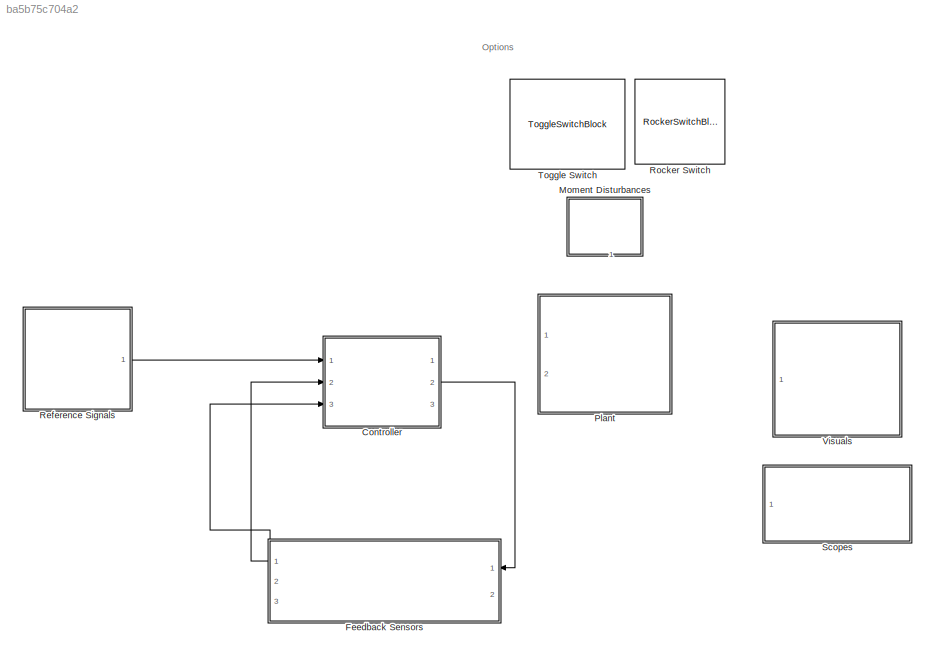
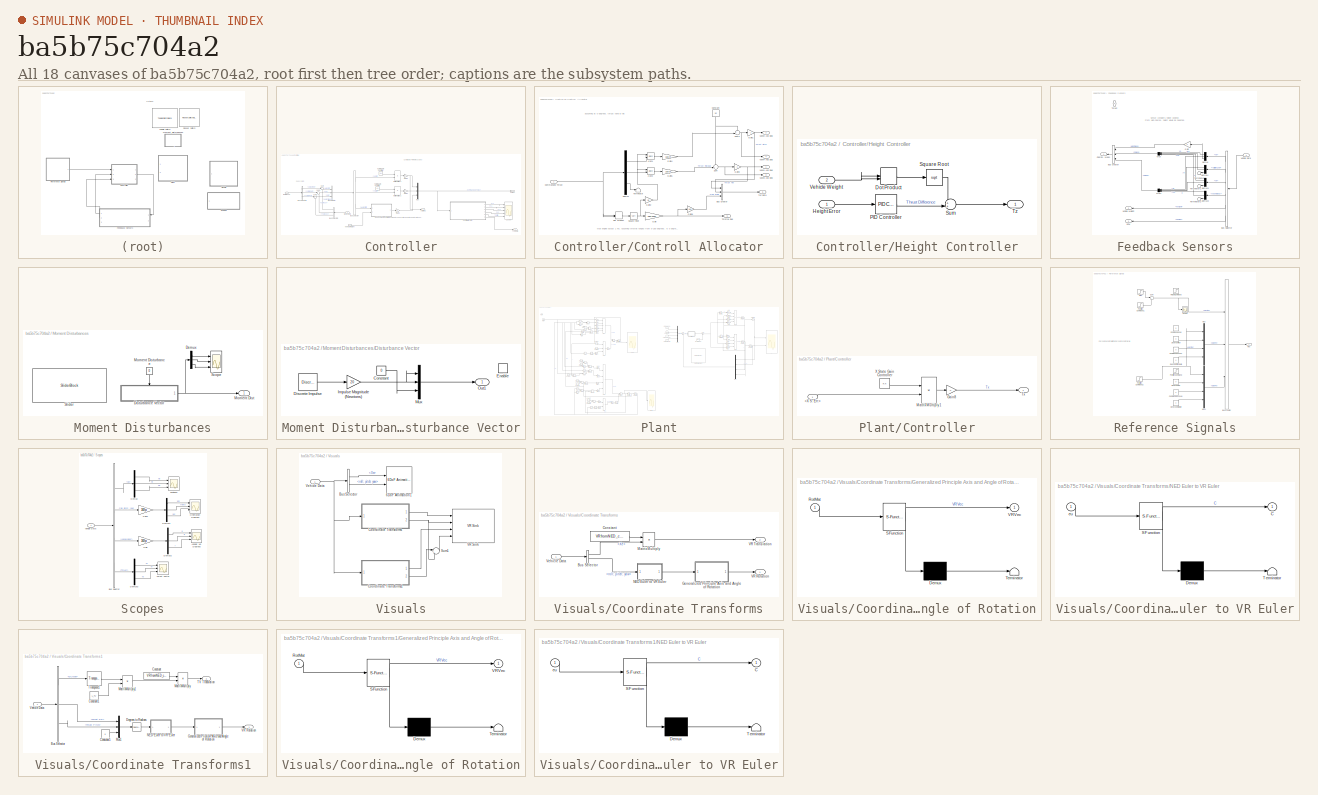
[diagram: thumbnail index - all 18 canvases of the model, root first then tree order]
MODEL slx_ba5b75c704a2
KIND model
CONFIG AbsTol = auto
CONFIG EnableMultiTasking = off
CONFIG FixedStep = auto
CONFIG MaxStep = auto
CONFIG MinStep = auto
CONFIG RelTol = 1e-3
CONFIG SampleTimeConstraint = Unconstrained
CONFIG SolverName = VariableStepAuto
CONFIG StartTime = 0.0
CONFIG StopTime = 2
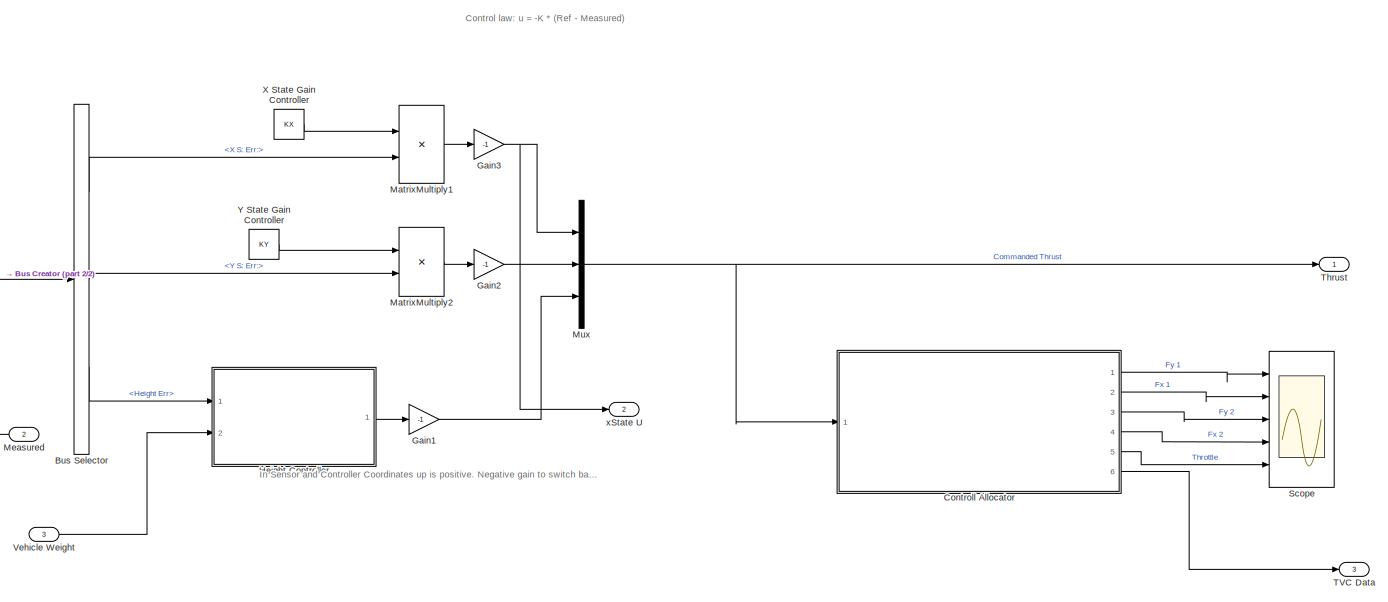
[diagram: Controller - part 1/2, most of the canvas]
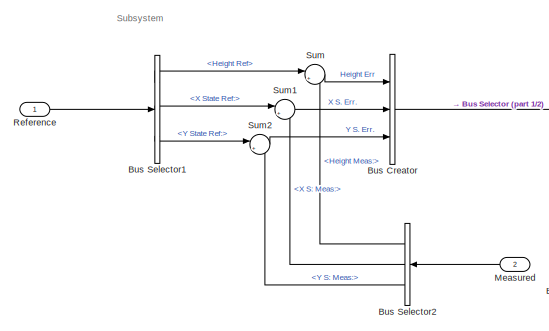
[diagram: Controller - part 2/2, middle left region]
BLOCK [SubSystem] Controller
  Commented = on
  PortSchema = {"entries":[{"content":{"sides":[{"content":{"connectorIds":["In1","In2"]},"type":"ConnectorPlacement.EquallySpacedRectSide","uuid":"a9e81047-82e7-465f-ace1-8f718b90561e"},{"content":{"connectorIds":["Out1","Out2","Out3"],"side":"RIGHT"},"type":"ConnectorPlacement.EquallySpacedRectSide","uuid":"e48627af-c2aa-4531-b804-41f44ff16765"},{"content":{"connectorIds":[],"side":"TOP"},"type":"ConnectorPlac...<+409ch>
  Ports = [3, 3]
  RequestExecContextInheritance = off
  TreatAsAtomicUnit = on
BLOCK [BusCreator] Controller/Bus Creator
  DisplayOption = bar
  InheritFromInputs = on
  Inputs = 3
  Ports = [3, 1]
BLOCK [BusSelector] Controller/Bus Selector
  OutputSignals = X S: Err:,Y S: Err:,Height Err
  Ports = [1, 3]
BLOCK [BusSelector] Controller/Bus Selector1
  OutputSignals = Height Ref,X State Ref:,Y State Ref:
  Ports = [1, 3]
BLOCK [BusSelector] Controller/Bus Selector2
  NameLocation = top
  OutputSignals = Height Meas:,X S: Meas:,Y S: Meas:
  Ports = [1, 3]
BLOCK [SubSystem] Controller/Controll Allocator
  Ports = [1, 6]
  RequestExecContextInheritance = off
BLOCK [Trigonometry] Controller/Controll Allocator/Atan1
  Operator = atan2
  Ports = [2, 1]
BLOCK [Trigonometry] Controller/Controll Allocator/Atan2
  Operator = atan2
  Ports = [2, 1]
BLOCK [BusCreator] Controller/Controll Allocator/Bus Creator
  DisplayOption = bar
  InheritFromInputs = on
  Inputs = 3
  Ports = [3, 1]
BLOCK [Inport] Controller/Controll Allocator/Commanded Thrust
BLOCK [Constant] Controller/Controll Allocator/Constant
  NameLocation = left
  Value = 90
BLOCK [Demux] Controller/Controll Allocator/Demux
  Outputs = 3
  Ports = [1, 3]
BLOCK [DotProduct] Controller/Controll Allocator/Dot Product
  OutDataTypeStr = Inherit: Inherit via internal rule
BLOCK [Gain] Controller/Controll Allocator/Gain
  Gain = 180/1000
BLOCK [Gain] Controller/Controll Allocator/Gain1
  Gain = -1
BLOCK [Gain] Controller/Controll Allocator/Gain2
  Gain = 1/2
BLOCK [Gain] Controller/Controll Allocator/Gain3
  Gain = -1
BLOCK [Gain] Controller/Controll Allocator/Gain4
  Gain = 180/pi
BLOCK [Gain] Controller/Controll Allocator/Gain5
  Gain = 180/pi
BLOCK [Gain] Controller/Controll Allocator/Gain6
  Gain = 1/90
BLOCK [Sqrt] Controller/Controll Allocator/Square Root
BLOCK [Sum] Controller/Controll Allocator/Sum
  Inputs = -+|
  Ports = [2, 1]
BLOCK [Sum] Controller/Controll Allocator/Sum2
  Inputs = +-|
  Ports = [2, 1]
BLOCK [Outport] Controller/Controll Allocator/TVC Data
  Port = 6
BLOCK [Terminator] Controller/Controll Allocator/Terminator
BLOCK [Outport] Controller/Controll Allocator/Throttle Deg
  Port = 5
BLOCK [Outport] Controller/Controll Allocator/Vane1 Ang Deg
BLOCK [Outport] Controller/Controll Allocator/Vane2 Ang Deg
  Port = 2
BLOCK [Outport] Controller/Controll Allocator/Vane3 Ang Deg
  Port = 3
BLOCK [Outport] Controller/Controll Allocator/Vane4 Ang Deg
  Port = 4
BLOCK [Gain] Controller/Gain1
  Gain = -1
BLOCK [Gain] Controller/Gain2
  Gain = -1
BLOCK [Gain] Controller/Gain3
  Gain = -1
BLOCK [SubSystem] Controller/Height Controller
  Ports = [2, 1]
  RequestExecContextInheritance = off
BLOCK [DotProduct] Controller/Height Controller/Dot Product
  OutDataTypeStr = Inherit: Inherit via internal rule
BLOCK [Inport] Controller/Height Controller/Height Error
BLOCK [Reference] Controller/Height Controller/PID Controller  REF=slpidlib/PID Controller
  Ports = [1, 1]
  SourceBlock = slpidlib/PID Controller
  SourceProductBaseCode = SL
  SourceType = PID 1dof
BLOCK [Sqrt] Controller/Height Controller/Square Root
BLOCK [Sum] Controller/Height Controller/Sum
  Inputs = ++|
  Ports = [2, 1]
BLOCK [Outport] Controller/Height Controller/Tz
BLOCK [Inport] Controller/Height Controller/Vehicle Weight
  Port = 2
BLOCK [Product] Controller/MatrixMultiply1
  Multiplication = Matrix(*)
  Ports = [2, 1]
BLOCK [Product] Controller/MatrixMultiply2
  Multiplication = Matrix(*)
  Ports = [2, 1]
BLOCK [Inport] Controller/Measured
  NameLocation = top
  Port = 2
BLOCK [Mux] Controller/Mux
  DisplayOption = bar
  Inputs = 3
  Ports = [3, 1]
BLOCK [Inport] Controller/Reference
BLOCK [Scope] Controller/Scope
  Floating = off
  NumInputPorts = 5
  Ports = [5]
  ScopeSpecificationString = Simulink.scopes.TimeScopeBlockCfg('CurrentConfiguration', extmgr.ConfigurationSet(extmgr.Configuration('Core','General UI',true),extmgr.Configuration('Core','Source UI',true),extmgr.Configuration('Sources','WiredSimulink',true,'DataLoggingVariableName','ScopeData1'),extmgr.Configuration('Visuals','Time Domain',true,'SerializedDisplays',{struct('MinYLimReal','-66.35056','MaxYLimReal','77.40779','YL...<+4821ch>
BLOCK [Sum] Controller/Sum
  Inputs = |+-
  Ports = [2, 1]
BLOCK [Sum] Controller/Sum1
  Inputs = |+-
  Ports = [2, 1]
BLOCK [Sum] Controller/Sum2
  Inputs = |+-
  Ports = [2, 1]
BLOCK [Outport] Controller/TVC Data
  Port = 3
BLOCK [Outport] Controller/Thrust
BLOCK [Inport] Controller/Vehicle Weight
  Port = 3
BLOCK [Constant] Controller/X State Gain Controller
  Value = KX
  VectorParams1D = off
BLOCK [Constant] Controller/Y State Gain Controller
  Value = KY
  VectorParams1D = off
BLOCK [Outport] Controller/xState U
  Port = 2
BLOCK [SubSystem] Feedback Sensors
  Commented = on
  NameLocation = top
  PortSchema = {"entries":[{"content":{"sides":[{"content":{"connectorIds":["In1","In2"]},"type":"ConnectorPlacement.EquallySpacedRectSide","uuid":"d175d4a2-8e54-4a4e-8022-790f4682ab06"},{"content":{"connectorIds":["Out1"],"side":"RIGHT"},"type":"ConnectorPlacement.EquallySpacedRectSide","uuid":"24f1a27c-01cc-42b0-9970-402e35771ac9"},{"content":{"connectorIds":["Out2","Out3"],"side":"TOP"},"type":"ConnectorPlace...<+259ch>
  Ports = [2, 3]
  RequestExecContextInheritance = off
BLOCK [BusCreator] Feedback Sensors/Bus Creator
  DisplayOption = bar
  InheritFromInputs = on
  Inputs = 3
  NameLocation = top
  Ports = [3, 1]
BLOCK [BusSelector] Feedback Sensors/Bus Selector
  NameLocation = top
  OutputSignals = Xe,roll; pitch; yaw,Ve,AngVel Body,Weight,DCMbe
  Ports = [1, 6]
BLOCK [Outport] Feedback Sensors/Coords, Meas.
  NameLocation = top
BLOCK [Outport] Feedback Sensors/DCM
  NameLocation = top
  Port = 3
BLOCK [Demux] Feedback Sensors/Demux
  NameLocation = top
  Outputs = 3
  Ports = [1, 3]
BLOCK [Demux] Feedback Sensors/Demux1
  NameLocation = top
  Outputs = 3
  Ports = [1, 3]
BLOCK [Demux] Feedback Sensors/Demux2
  NameLocation = top
  Outputs = 3
  Ports = [1, 3]
BLOCK [Demux] Feedback Sensors/Demux4
  NameLocation = top
  Outputs = 3
  Ports = [1, 3]
BLOCK [Gain] Feedback Sensors/Gain
  Gain = -1
  NameLocation = top
BLOCK [Mux] Feedback Sensors/Mux
  DisplayOption = bar
  NameLocation = top
  Ports = [4, 1]
BLOCK [Mux] Feedback Sensors/Mux1
  DisplayOption = bar
  NameLocation = top
  Ports = [4, 1]
BLOCK [Terminator] Feedback Sensors/Terminator
  NameLocation = top
BLOCK [Terminator] Feedback Sensors/Terminator1
  NameLocation = top
BLOCK [Terminator] Feedback Sensors/Terminator2
  NameLocation = top
BLOCK [Inport] Feedback Sensors/Thrust
  NameLocation = left
BLOCK [Inport] Feedback Sensors/Vehicle Data
  NameLocation = top
  Port = 2
BLOCK [Outport] Feedback Sensors/Vehicle Weight
  NameLocation = top
  Port = 2
BLOCK [SubSystem] Moment Disturbances
  Commented = on
  NameLocation = top
  Ports = [0, 1]
  RequestExecContextInheritance = off
BLOCK [Demux] Moment Disturbances/Demux
  Outputs = 3
  Ports = [1, 3]
BLOCK [SubSystem] Moment Disturbances/Disturbance Vector
  Ports = [0, 1, 1]
  RequestExecContextInheritance = off
BLOCK [Constant] Moment Disturbances/Disturbance Vector/Constant
  Value = 0
BLOCK [Reference] Moment Disturbances/Disturbance Vector/Discrete Impulse  REF=dspsrcs4/Discrete 
Impulse
  Ports = [0, 1]
  SourceBlock = dspsrcs4/Discrete \nImpulse
  SourceProductBaseCode = DS
  SourceType = Discrete Impulse
BLOCK [EnablePort] Moment Disturbances/Disturbance Vector/Enable
  Ports = []
BLOCK [Gain] Moment Disturbances/Disturbance Vector/Impulse Magnitude (Newtons)
  Gain = 20
BLOCK [Mux] Moment Disturbances/Disturbance Vector/Mux
  DisplayOption = bar
  Inputs = 3
  Ports = [3, 1]
BLOCK [Outport] Moment Disturbances/Disturbance Vector/Out1
BLOCK [Outport] Moment Disturbances/Moment Dist
BLOCK [Constant] Moment Disturbances/Moment Disturbance
  NameLocation = left
  Value = 0
BLOCK [Scope] Moment Disturbances/Scope
  Floating = off
  NumInputPorts = 3
  Ports = [3]
  ScopeSpecificationString = Simulink.scopes.TimeScopeBlockCfg('CurrentConfiguration', extmgr.ConfigurationSet(extmgr.Configuration('Core','General UI',true),extmgr.Configuration('Core','Source UI',true),extmgr.Configuration('Sources','WiredSimulink',true,'DataLoggingVariableName','ScopeData1'),extmgr.Configuration('Visuals','Time Domain',true,'SerializedDisplays',{struct('MinYLimReal','-1.00000','MaxYLimReal','1.00000','YLab...<+2762ch>
BLOCK [SliderBlock] Moment Disturbances/Slider
  ScaleMax = 20
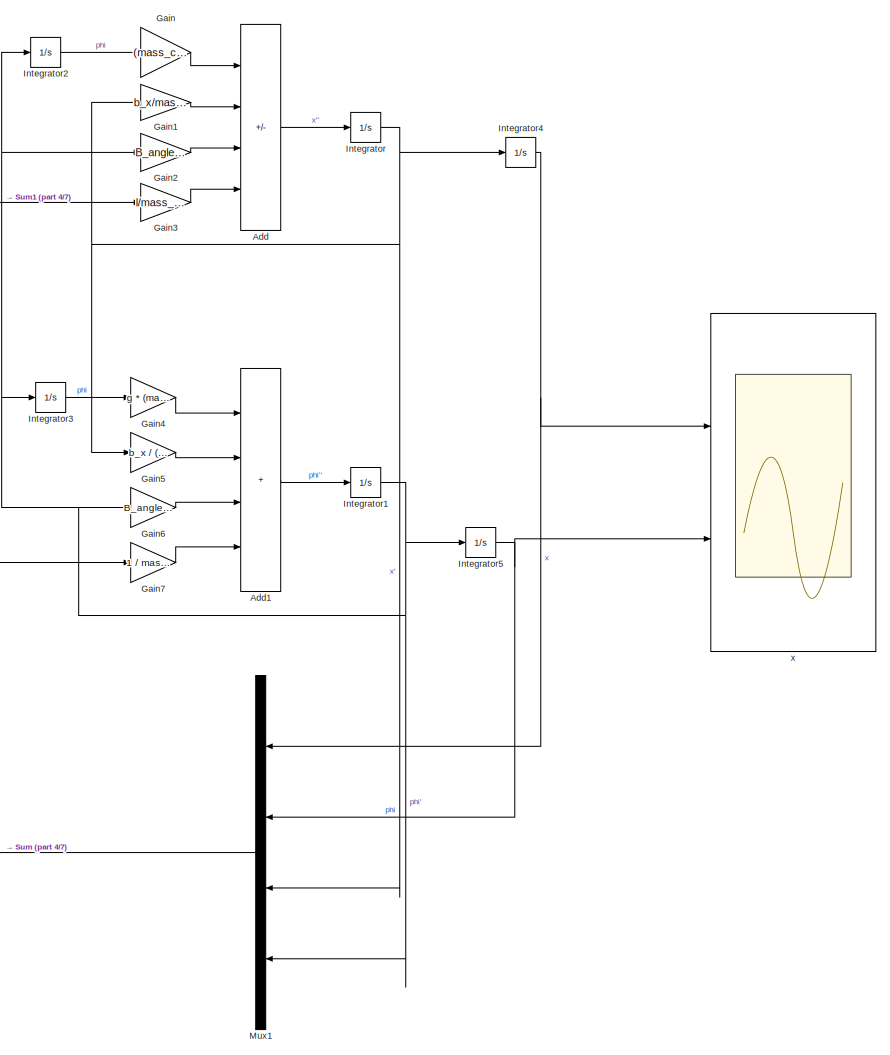
[diagram: Plant - part 1/7, middle right region]
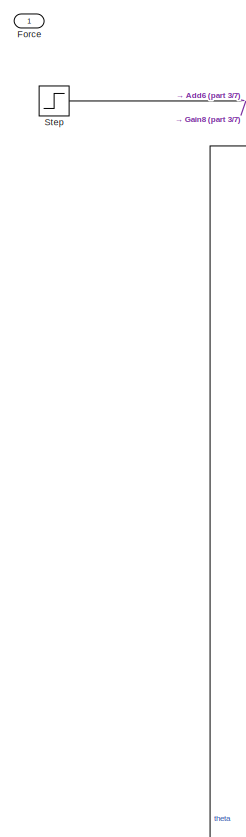
[diagram: Plant - part 2/7, top left region]
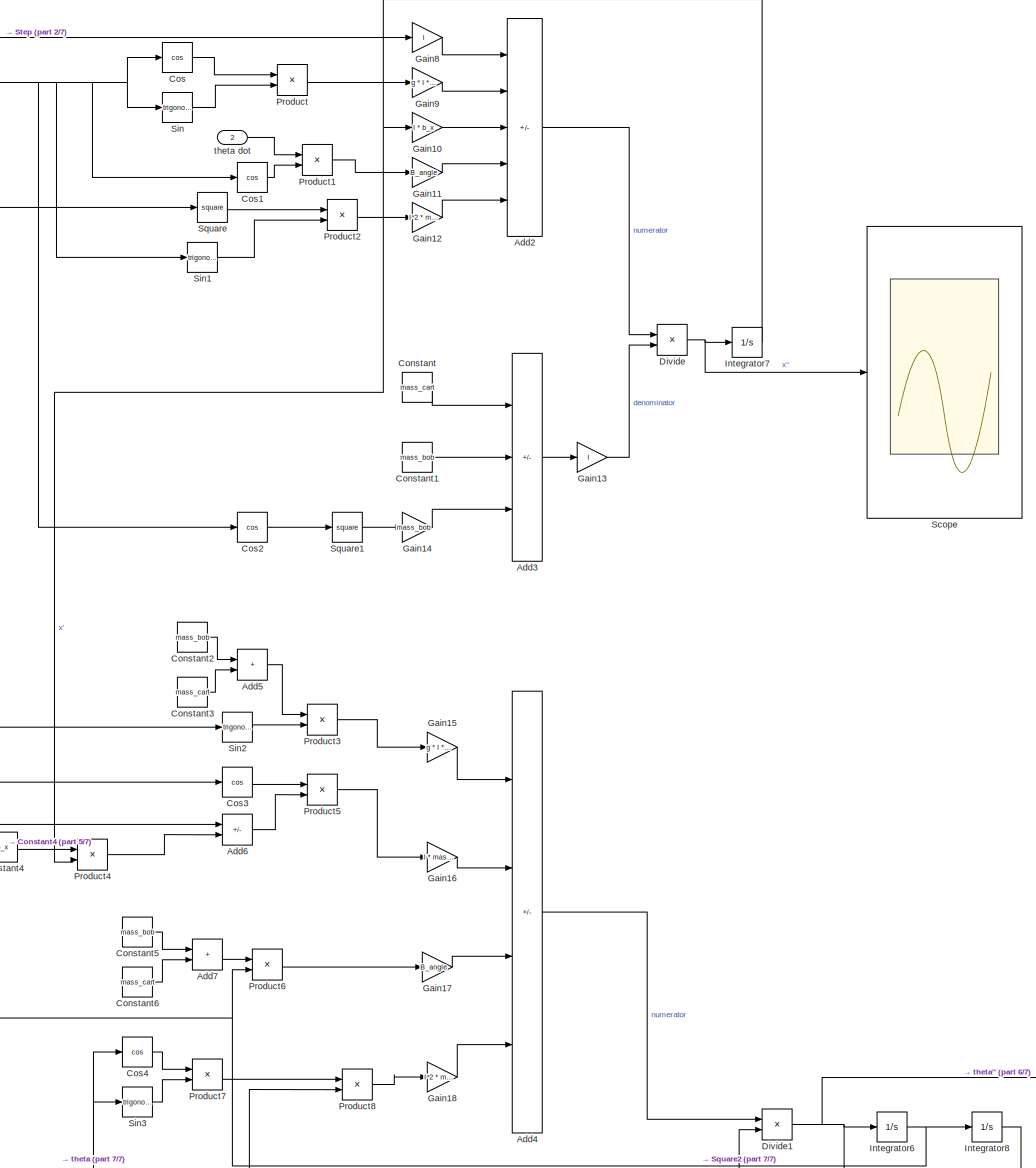
[diagram: Plant - part 3/7, left side, full height]
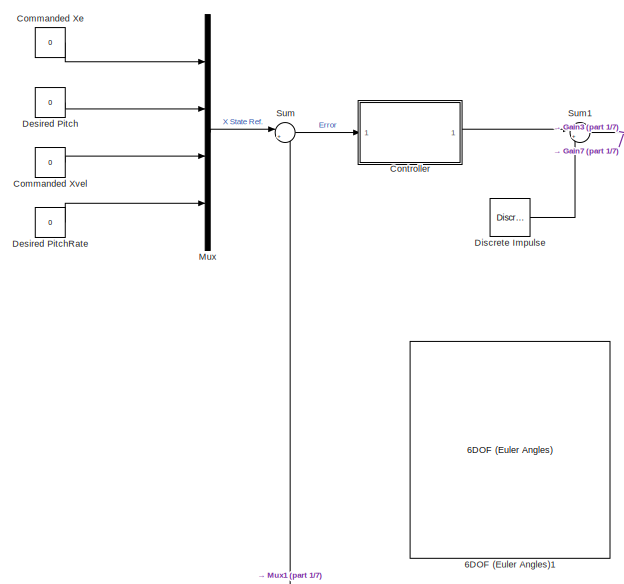
[diagram: Plant - part 4/7, central region]
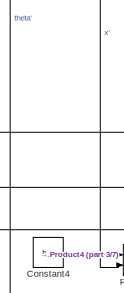
[diagram: Plant - part 5/7, middle left region]
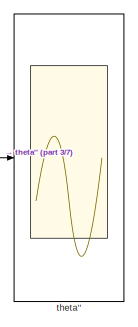
[diagram: Plant - part 6/7, bottom center region]
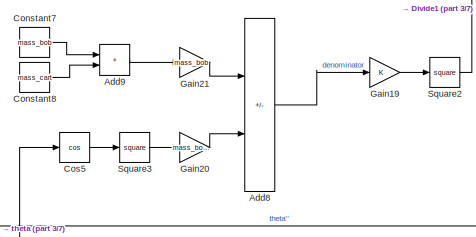
[diagram: Plant - part 7/7, bottom left region]
BLOCK [SubSystem] Plant
  Ports = [2]
  RequestExecContextInheritance = off
BLOCK [Reference] Plant/6DOF (Euler Angles)1  REF=shared6dof/6DOF (Euler Angles)
  Commented = on
  Ports = [2, 8]
  SourceBlock = shared6dof/6DOF (Euler Angles)
  SourceProductBaseCode = AE,PW,DR,MT,VE
  SourceType = 6DOF EoM (Body Axis)
BLOCK [Sum] Plant/Add
  Commented = on
  IconShape = rectangular
  Inputs = +++-
  Ports = [4, 1]
BLOCK [Sum] Plant/Add1
  Commented = on
  IconShape = rectangular
  Inputs = ++++
  Ports = [4, 1]
BLOCK [Sum] Plant/Add2
  IconShape = rectangular
  Inputs = -+++-
  Ports = [5, 1]
BLOCK [Sum] Plant/Add3
  IconShape = rectangular
  Inputs = ++-
  Ports = [3, 1]
BLOCK [Sum] Plant/Add4
  IconShape = rectangular
  Inputs = -+-+
  Ports = [4, 1]
BLOCK [Sum] Plant/Add5
  IconShape = rectangular
  Ports = [2, 1]
BLOCK [Sum] Plant/Add6
  IconShape = rectangular
  Inputs = +-
  Ports = [2, 1]
BLOCK [Sum] Plant/Add7
  IconShape = rectangular
  Ports = [2, 1]
BLOCK [Sum] Plant/Add8
  IconShape = rectangular
  Inputs = -+
  Ports = [2, 1]
BLOCK [Sum] Plant/Add9
  IconShape = rectangular
  Ports = [2, 1]
BLOCK [Constant] Plant/Commanded Xe
  Commented = on
  Value = 0
BLOCK [Constant] Plant/Commanded Xvel
  Commented = on
  Value = 0
BLOCK [Constant] Plant/Constant
  Value = mass_cart
BLOCK [Constant] Plant/Constant1
  Value = mass_bob
BLOCK [Constant] Plant/Constant2
  Value = mass_bob
BLOCK [Constant] Plant/Constant3
  Value = mass_cart
BLOCK [Constant] Plant/Constant4
  Value = b_x
BLOCK [Constant] Plant/Constant5
  Value = mass_bob
BLOCK [Constant] Plant/Constant6
  Value = mass_cart
BLOCK [Constant] Plant/Constant7
  Value = mass_bob
BLOCK [Constant] Plant/Constant8
  Value = mass_cart
BLOCK [SubSystem] Plant/Controller
  Commented = on
  Ports = [1, 1]
  RequestExecContextInheritance = off
BLOCK [Inport] Plant/Controller/<X S: Err:>
BLOCK [Gain] Plant/Controller/Gain8
  Gain = -1
BLOCK [Product] Plant/Controller/MatrixMultiply1
  Multiplication = Matrix(*)
  Ports = [2, 1]
BLOCK [Outport] Plant/Controller/Tx
BLOCK [Constant] Plant/Controller/X State Gain Controller
  Value = KX
  VectorParams1D = off
BLOCK [Trigonometry] Plant/Cos
  Operator = cos
  Ports = [1, 1]
BLOCK [Trigonometry] Plant/Cos1
  Operator = cos
  Ports = [1, 1]
BLOCK [Trigonometry] Plant/Cos2
  Operator = cos
  Ports = [1, 1]
BLOCK [Trigonometry] Plant/Cos3
  Operator = cos
  Ports = [1, 1]
BLOCK [Trigonometry] Plant/Cos4
  Operator = cos
  Ports = [1, 1]
BLOCK [Trigonometry] Plant/Cos5
  Operator = cos
  Ports = [1, 1]
BLOCK [Constant] Plant/Desired Pitch
  Commented = on
  Value = 0
BLOCK [Constant] Plant/Desired PitchRate
  Commented = on
  Value = 0
BLOCK [Reference] Plant/Discrete Impulse  REF=dspsrcs4/Discrete 
Impulse
  Commented = on
  Ports = [0, 1]
  SourceBlock = dspsrcs4/Discrete \nImpulse
  SourceProductBaseCode = DS
  SourceType = Discrete Impulse
BLOCK [Product] Plant/Divide
  Inputs = */
  Ports = [2, 1]
BLOCK [Product] Plant/Divide1
  Inputs = */
  Ports = [2, 1]
BLOCK [Inport] Plant/Force
BLOCK [Gain] Plant/Gain
  Commented = on
  Gain = (mass_cart * g)/mass_pendulum
BLOCK [Gain] Plant/Gain1
  Commented = on
  Gain = b_x/mass_pendulum
BLOCK [Gain] Plant/Gain10
  Gain = l * b_x
BLOCK [Gain] Plant/Gain11
  Gain = B_angle
BLOCK [Gain] Plant/Gain12
  Gain = l^2 * mass_bob
BLOCK [Gain] Plant/Gain13
  Gain = l
BLOCK [Gain] Plant/Gain14
  Gain = mass_bob
BLOCK [Gain] Plant/Gain15
  Gain = g * l * mass_bob
BLOCK [Gain] Plant/Gain16
  Gain = l * mass_bob
BLOCK [Gain] Plant/Gain17
  Gain = B_angle
BLOCK [Gain] Plant/Gain18
  Gain = l^2 * mass_bob^2
BLOCK [Gain] Plant/Gain19
BLOCK [Gain] Plant/Gain2
  Commented = on
  Gain = B_angle/(l * mass_pendulum)
BLOCK [Gain] Plant/Gain20
  Gain = mass_bob^2
BLOCK [Gain] Plant/Gain21
  Gain = mass_bob
BLOCK [Gain] Plant/Gain3
  Commented = on
  Gain = l/mass_pendulum
BLOCK [Gain] Plant/Gain4
  Commented = on
  Gain = g * (mass_cart + mass_pendulum)/(l * mass_pendulum)
BLOCK [Gain] Plant/Gain5
  Commented = on
  Gain = b_x / (mass_pendulum * l)
BLOCK [Gain] Plant/Gain6
  Commented = on
  Gain = B_angle * B_angle * (mass_cart + mass_pendulum) / (l^2 * mass_cart * mass_pendulum)
BLOCK [Gain] Plant/Gain7
  Commented = on
  Gain = 1 / mass_pendulum
BLOCK [Gain] Plant/Gain8
  Gain = l
BLOCK [Gain] Plant/Gain9
  Gain = g * l * mass_bob
BLOCK [Integrator] Plant/Integrator
  Commented = on
  Ports = [1, 1]
BLOCK [Integrator] Plant/Integrator1
  Commented = on
  Ports = [1, 1]
BLOCK [Integrator] Plant/Integrator2
  Commented = on
  Ports = [1, 1]
BLOCK [Integrator] Plant/Integrator3
  Commented = on
  Ports = [1, 1]
BLOCK [Integrator] Plant/Integrator4
  Commented = on
  Ports = [1, 1]
BLOCK [Integrator] Plant/Integrator5
  Commented = on
  Ports = [1, 1]
BLOCK [Integrator] Plant/Integrator6
  Ports = [1, 1]
BLOCK [Integrator] Plant/Integrator7
  Ports = [1, 1]
BLOCK [Integrator] Plant/Integrator8
  Ports = [1, 1]
BLOCK [Mux] Plant/Mux
  Commented = on
  DisplayOption = bar
  Ports = [4, 1]
BLOCK [Mux] Plant/Mux1
  Commented = on
  DisplayOption = bar
  NameLocation = top
  Ports = [4, 1]
BLOCK [Product] Plant/Product
  Ports = [2, 1]
BLOCK [Product] Plant/Product1
  Ports = [2, 1]
BLOCK [Product] Plant/Product2
  Ports = [2, 1]
BLOCK [Product] Plant/Product3
  Ports = [2, 1]
BLOCK [Product] Plant/Product4
  Ports = [2, 1]
BLOCK [Product] Plant/Product5
  Ports = [2, 1]
BLOCK [Product] Plant/Product6
  Ports = [2, 1]
BLOCK [Product] Plant/Product7
  Ports = [2, 1]
BLOCK [Product] Plant/Product8
  Ports = [2, 1]
BLOCK [Scope] Plant/Scope
  Floating = off
  NumInputPorts = 1
  Ports = [1]
  ScopeSpecificationString = Simulink.scopes.TimeScopeBlockCfg('CurrentConfiguration', extmgr.ConfigurationSet(extmgr.Configuration('Core','General UI',true),extmgr.Configuration('Core','Source UI',true),extmgr.Configuration('Sources','WiredSimulink',true,'DataLoggingVariableName','ScopeData1'),extmgr.Configuration('Visuals','Time Domain',true,'SerializedDisplays',{struct('MinYLimReal','-0.5625','MaxYLimReal','0.0625','YLabel...<+1392ch>
BLOCK [Trigonometry] Plant/Sin
  Ports = [1, 1]
BLOCK [Trigonometry] Plant/Sin1
  Ports = [1, 1]
BLOCK [Trigonometry] Plant/Sin2
  Ports = [1, 1]
BLOCK [Trigonometry] Plant/Sin3
  Ports = [1, 1]
BLOCK [Math] Plant/Square
  Operator = square
  Ports = [1, 1]
BLOCK [Math] Plant/Square1
  Operator = square
  Ports = [1, 1]
BLOCK [Math] Plant/Square2
  Operator = square
  Ports = [1, 1]
BLOCK [Math] Plant/Square3
  Operator = square
  Ports = [1, 1]
BLOCK [Step] Plant/Step
  SampleTime = 0
  Time = 0.01
BLOCK [Sum] Plant/Sum
  Commented = on
  Inputs = |+-
  Ports = [2, 1]
BLOCK [Sum] Plant/Sum1
  Commented = on
  Inputs = |++
  Ports = [2, 1]
BLOCK [Inport] Plant/theta dot
  Port = 2
BLOCK [Scope] Plant/theta''
  Floating = off
  NumInputPorts = 1
  Ports = [1]
  ScopeSpecificationString = Simulink.scopes.TimeScopeBlockCfg('CurrentConfiguration', extmgr.ConfigurationSet(extmgr.Configuration('Core','General UI',true),extmgr.Configuration('Core','Source UI',true),extmgr.Configuration('Sources','WiredSimulink',true,'DataLoggingVariableName','ScopeData2'),extmgr.Configuration('Visuals','Time Domain',true,'SerializedDisplays',{struct('MinYLimReal','-0.21508','MaxYLimReal','0.21834','YLab...<+1404ch>
BLOCK [Scope] Plant/x
  Commented = on
  Floating = off
  NumInputPorts = 2
  Ports = [2]
  ScopeSpecificationString = Simulink.scopes.TimeScopeBlockCfg('CurrentConfiguration', extmgr.ConfigurationSet(extmgr.Configuration('Core','General UI',true),extmgr.Configuration('Core','Source UI',true),extmgr.Configuration('Sources','WiredSimulink',true,'DataLoggingVariableName','ScopeData1'),extmgr.Configuration('Visuals','Time Domain',true,'SerializedDisplays',{struct('MinYLimReal','-12.64871','MaxYLimReal','113.83627','Y...<+2035ch>
BLOCK [SubSystem] Reference Signals
  Commented = on
  Ports = [0, 1]
  RequestExecContextInheritance = off
BLOCK [BusCreator] Reference Signals/Bus Creator
  DisplayOption = bar
  InheritFromInputs = on
  Inputs = 3
  Ports = [3, 1]
BLOCK [Constant] Reference Signals/Commanded Xe
  Value = 0
BLOCK [Constant] Reference Signals/Commanded Xvel
  Value = 0
BLOCK [Constant] Reference Signals/Commanded YeVel
  Value = 0
BLOCK [Constant] Reference Signals/Desired Pitch
  Value = 0
BLOCK [Constant] Reference Signals/Desired PitchRate
  Value = 0
BLOCK [Constant] Reference Signals/Desired Roll
  Value = 0
BLOCK [Constant] Reference Signals/Desired RollRate
  Value = 0
BLOCK [Step] Reference Signals/Height Command
  SampleTime = 0
BLOCK [Mux] Reference Signals/Mux
  DisplayOption = bar
  Ports = [4, 1]
BLOCK [Mux] Reference Signals/Mux1
  DisplayOption = bar
  Ports = [4, 1]
BLOCK [Step] Reference Signals/Position Command
  SampleTime = 0
  Time = 3
BLOCK [Step] Reference Signals/Position Command1
  SampleTime = 0
  Time = 0.5
BLOCK [Step] Reference Signals/Position Command2
  SampleTime = 0
BLOCK [Outport] Reference Signals/Ref.
BLOCK [Scope] Reference Signals/Scope
  Floating = off
  NumInputPorts = 1
  Ports = [1]
  ScopeSpecificationString = Simulink.scopes.TimeScopeBlockCfg('CurrentConfiguration', extmgr.ConfigurationSet(extmgr.Configuration('Core','General UI',true),extmgr.Configuration('Core','Source UI',true),extmgr.Configuration('Sources','WiredSimulink',true,'DataLoggingVariableName','ScopeData1'),extmgr.Configuration('Visuals','Time Domain',true,'SerializedDisplays',{struct('MinYLimReal','-0.125','MaxYLimReal','1.125','YLabelRe...<+1387ch>
BLOCK [Step] Reference Signals/Step
  After = -1
  SampleTime = 0
  Time = 6
BLOCK [Sum] Reference Signals/Sum
  Inputs = |++
  Ports = [2, 1]
BLOCK [RockerSwitchBlock] Rocker Switch
  Commented = on
BLOCK [SubSystem] Scopes
  Commented = on
  Ports = [1]
  RequestExecContextInheritance = off
BLOCK [Scope] Scopes/Angular Vel Degrees
  Floating = off
  NumInputPorts = 3
  Ports = [3]
  ScopeSpecificationString = Simulink.scopes.TimeScopeBlockCfg('CurrentConfiguration', extmgr.ConfigurationSet(extmgr.Configuration('Core','General UI',true),extmgr.Configuration('Core','Source UI',true),extmgr.Configuration('Sources','WiredSimulink',true,'DataLoggingVariableName','ScopeData2'),extmgr.Configuration('Visuals','Time Domain',true,'SerializedDisplays',{struct('MinYLimReal','-24.16567','MaxYLimReal','27.46833','YL...<+2754ch>
BLOCK [BusSelector] Scopes/Bus Selector
  OutputSignals = Xe,roll; pitch; yaw,AngVel Body,Thrust
  Ports = [1, 4]
BLOCK [Demux] Scopes/Demux
  Outputs = 3
  Ports = [1, 3]
BLOCK [Demux] Scopes/Demux1
  Outputs = 3
  Ports = [1, 3]
BLOCK [Demux] Scopes/Demux2
  Outputs = 3
  Ports = [1, 3]
BLOCK [Demux] Scopes/Demux3
  Outputs = 3
  Ports = [1, 3]
BLOCK [Gain] Scopes/Gain
  Gain = 180/pi
BLOCK [Gain] Scopes/Gain1
  Gain = 180/pi
BLOCK [Scope] Scopes/Orientation Degrees
  Floating = off
  NumInputPorts = 3
  Ports = [3]
  ScopeSpecificationString = Simulink.scopes.TimeScopeBlockCfg('CurrentConfiguration', extmgr.ConfigurationSet(extmgr.Configuration('Core','General UI',true),extmgr.Configuration('Core','Source UI',true),extmgr.Configuration('Sources','WiredSimulink',true,'DataLoggingVariableName','ScopeData1'),extmgr.Configuration('Visuals','Time Domain',true,'SerializedDisplays',{struct('MinYLimReal','-2.49661','MaxYLimReal','4.99694','YLab...<+2745ch>
BLOCK [Scope] Scopes/Positions
  Floating = off
  NumInputPorts = 3
  Ports = [3]
  ScopeSpecificationString = Simulink.scopes.TimeScopeBlockCfg('CurrentConfiguration', extmgr.ConfigurationSet(extmgr.Configuration('Core','General UI',true),extmgr.Configuration('Core','Source UI',true),extmgr.Configuration('Sources','WiredSimulink',true),extmgr.Configuration('Visuals','Time Domain',true,'SerializedDisplays',{struct('MinYLimReal','-0.1443','MaxYLimReal','1.29867','YLabelReal','','MinYLimMag','0.00000','MaxYL...<+2711ch>
BLOCK [Scope] Scopes/Thrust Vector
  Floating = off
  NumInputPorts = 3
  Ports = [3]
  ScopeSpecificationString = Simulink.scopes.TimeScopeBlockCfg('CurrentConfiguration', extmgr.ConfigurationSet(extmgr.Configuration('Core','General UI',true),extmgr.Configuration('Core','Source UI',true),extmgr.Configuration('Sources','WiredSimulink',true,'DataLoggingVariableName','ScopeData3'),extmgr.Configuration('Visuals','Time Domain',true,'SerializedDisplays',{struct('MinYLimReal','-53.5144','MaxYLimReal','32.87919','YLa...<+2763ch>
BLOCK [Inport] Scopes/Vehicle Data
BLOCK [ToggleSwitchBlock] Toggle Switch
  Commented = on
BLOCK [SubSystem] Visuals
  Commented = on
  Ports = [1]
  RequestExecContextInheritance = off
  TreatAsAtomicUnit = on
BLOCK [Reference] Visuals/6DoF Animation1  REF=aerolibanim/6DoF Animation
  Ports = [2]
  SourceBlock = aerolibanim/6DoF Animation
  SourceProductBaseCode = AE
  SourceType = 6DoF_Animation
BLOCK [BusSelector] Visuals/Bus Selector
  OutputSignals = Xe,roll; pitch; yaw
  Ports = [1, 2]
BLOCK [SubSystem] Visuals/Coordinate Transforms
  Ports = [1, 2]
  RequestExecContextInheritance = off
BLOCK [BusSelector] Visuals/Coordinate Transforms/Bus Selector
  OutputSignals = Xe,roll; pitch; yaw
  Ports = [1, 2]
BLOCK [Constant] Visuals/Coordinate Transforms/Constant
  Value = VRfromNED_cordT
BLOCK [SubSystem] Visuals/Coordinate Transforms/Generalized Principle Axis and Angle of Rotation
  ErrorFcn = Stateflow.Translate.translate
  PermitHierarchicalResolution = ExplicitOnly
  Ports = [1, 1]
  RequestExecContextInheritance = off
  SFBlockType = MATLAB Function
  TreatAsAtomicUnit = on
BLOCK [Demux] Visuals/Coordinate Transforms/Generalized Principle Axis and Angle of Rotation/ Demux 
  Outputs = 1
  Ports = [1, 1]
BLOCK [S-Function] Visuals/Coordinate Transforms/Generalized Principle Axis and Angle of Rotation/ SFunction 
  EnableBusSupport = on
  FunctionName = sf_sfun
  PortCounts = [1 2]
  Ports = [1, 2]
  SFcnIsStateOwnerBlock = off
  SFunctionDeploymentMode = off
  Tag = Stateflow S-Function 2
BLOCK [Terminator] Visuals/Coordinate Transforms/Generalized Principle Axis and Angle of Rotation/ Terminator 
BLOCK [Inport] Visuals/Coordinate Transforms/Generalized Principle Axis and Angle of Rotation/RotMat
BLOCK [Outport] Visuals/Coordinate Transforms/Generalized Principle Axis and Angle of Rotation/VRVec
BLOCK [Product] Visuals/Coordinate Transforms/MatrixMultiply
  Multiplication = Matrix(*)
  Ports = [2, 1]
BLOCK [SubSystem] Visuals/Coordinate Transforms/NED Euler to VR Euler
  ErrorFcn = Stateflow.Translate.translate
  PermitHierarchicalResolution = ExplicitOnly
  Ports = [1, 1]
  RequestExecContextInheritance = off
  SFBlockType = MATLAB Function
  TreatAsAtomicUnit = on
BLOCK [Demux] Visuals/Coordinate Transforms/NED Euler to VR Euler/ Demux 
  Outputs = 1
  Ports = [1, 1]
BLOCK [S-Function] Visuals/Coordinate Transforms/NED Euler to VR Euler/ SFunction 
  EnableBusSupport = on
  FunctionName = sf_sfun
  PortCounts = [1 2]
  Ports = [1, 2]
  SFcnIsStateOwnerBlock = off
  SFunctionDeploymentMode = off
  Tag = Stateflow S-Function 3
BLOCK [Terminator] Visuals/Coordinate Transforms/NED Euler to VR Euler/ Terminator 
BLOCK [Outport] Visuals/Coordinate Transforms/NED Euler to VR Euler/C
BLOCK [Inport] Visuals/Coordinate Transforms/NED Euler to VR Euler/eu
BLOCK [Outport] Visuals/Coordinate Transforms/VR Rotation
BLOCK [Outport] Visuals/Coordinate Transforms/VR Translation
  Port = 2
BLOCK [Inport] Visuals/Coordinate Transforms/Vehicle Data
BLOCK [SubSystem] Visuals/Coordinate Transforms1
  Ports = [1, 2]
  RequestExecContextInheritance = off
BLOCK [BusSelector] Visuals/Coordinate Transforms1/Bus Selector
  OutputSignals = DCMbe,TVC Data.Thrust Rol,TVC Data.Thrust Pitch
  Ports = [1, 3]
BLOCK [Constant] Visuals/Coordinate Transforms1/Constant
  Value = VRfromNED_cordT
BLOCK [Constant] Visuals/Coordinate Transforms1/Constant1
  Value = L_TV
BLOCK [Constant] Visuals/Coordinate Transforms1/Constant5
  Value = 0
BLOCK [Reference] Visuals/Coordinate Transforms1/Degrees to Radians  REF=simulink_extras/Transformations/Degrees to
Radians
  Ports = [1, 1]
  SourceBlock = simulink_extras/Transformations/Degrees to\nRadians
  SourceProductBaseCode = SL
  SourceType = DegreesToRadians
BLOCK [SubSystem] Visuals/Coordinate Transforms1/Generalized Principle Axis and Angle of Rotation
  ErrorFcn = Stateflow.Translate.translate
  PermitHierarchicalResolution = ExplicitOnly
  Ports = [1, 1]
  RequestExecContextInheritance = off
  SFBlockType = MATLAB Function
  TreatAsAtomicUnit = on
BLOCK [Demux] Visuals/Coordinate Transforms1/Generalized Principle Axis and Angle of Rotation/ Demux 
  Outputs = 1
  Ports = [1, 1]
BLOCK [S-Function] Visuals/Coordinate Transforms1/Generalized Principle Axis and Angle of Rotation/ SFunction 
  EnableBusSupport = on
  FunctionName = sf_sfun
  PortCounts = [1 2]
  Ports = [1, 2]
  SFcnIsStateOwnerBlock = off
  SFunctionDeploymentMode = off
  Tag = Stateflow S-Function 1
BLOCK [Terminator] Visuals/Coordinate Transforms1/Generalized Principle Axis and Angle of Rotation/ Terminator 
BLOCK [Inport] Visuals/Coordinate Transforms1/Generalized Principle Axis and Angle of Rotation/RotMat
BLOCK [Outport] Visuals/Coordinate Transforms1/Generalized Principle Axis and Angle of Rotation/VRVec
BLOCK [Product] Visuals/Coordinate Transforms1/MatrixMultiply
  Multiplication = Matrix(*)
  Ports = [2, 1]
BLOCK [Product] Visuals/Coordinate Transforms1/MatrixMultiply1
  Multiplication = Matrix(*)
  Ports = [2, 1]
BLOCK [Mux] Visuals/Coordinate Transforms1/Mux1
  DisplayOption = bar
  Inputs = 3
  Ports = [3, 1]
BLOCK [SubSystem] Visuals/Coordinate Transforms1/NED Euler to VR Euler
  ErrorFcn = Stateflow.Translate.translate
  PermitHierarchicalResolution = ExplicitOnly
  Ports = [1, 1]
  RequestExecContextInheritance = off
  SFBlockType = MATLAB Function
  TreatAsAtomicUnit = on
BLOCK [Demux] Visuals/Coordinate Transforms1/NED Euler to VR Euler/ Demux 
  Outputs = 1
  Ports = [1, 1]
BLOCK [S-Function] Visuals/Coordinate Transforms1/NED Euler to VR Euler/ SFunction 
  EnableBusSupport = on
  FunctionName = sf_sfun
  PortCounts = [1 2]
  Ports = [1, 2]
  SFcnIsStateOwnerBlock = off
  SFunctionDeploymentMode = off
  Tag = Stateflow S-Function 4
BLOCK [Terminator] Visuals/Coordinate Transforms1/NED Euler to VR Euler/ Terminator 
BLOCK [Outport] Visuals/Coordinate Transforms1/NED Euler to VR Euler/C
BLOCK [Inport] Visuals/Coordinate Transforms1/NED Euler to VR Euler/eu
BLOCK [Outport] Visuals/Coordinate Transforms1/TV Translation
  Port = 2
BLOCK [Reference] Visuals/Coordinate Transforms1/Transpose1  REF=matrix_library/Transpose
  Ports = [1, 1]
  SourceBlock = matrix_library/Transpose
  SourceProductBaseCode = SL
  SourceType = Transpose
BLOCK [Outport] Visuals/Coordinate Transforms1/VR Rotation
BLOCK [Inport] Visuals/Coordinate Transforms1/Vehicle Data
BLOCK [Sum] Visuals/Sum1
  Inputs = |++
  Ports = [2, 1]
BLOCK [Reference] Visuals/VR Sink  REF=vrlib/VR Sink
  InstantiateOnLoad = on
  Ports = [4, 1]
  SourceBlock = vrlib/VR Sink
  SourceProductBaseCode = SL
  SourceType = Virtual Reality Sink
BLOCK [Inport] Visuals/Vehicle Data
ANNOTATION (root): Options
ANNOTATION Controller: Control law: u = -K * (Ref - Measured)
ANNOTATION Controller: In Sensor and Controller Coordinates up is positive. Negative gain to switch back to NED
ANNOTATION Controller: Subsystem
ANNOTATION Controller/Controll Allocator: Max engine output 1 KN. Assuming throttle ranges from 0-180 degrees. At 0 degrees = 0 thrust. at 180 deg = 1 Kn
ANNOTATION Controller/Controll Allocator: assuming at 0 degrees. thrust vane is flat
ANNOTATION Feedback Sensors: Sensor considers height positive. From NED Coords, height would be negative.
ANNOTATION Reference Signals: Forces in X control pitch, Forces in Y control roll.
LINE Controller/Bus Creator:1 -> Controller/Bus Selector:1
LINE Controller/Bus Selector1:1 -> Controller/Sum:1
LINE Controller/Bus Selector1:2 -> Controller/Sum1:1
LINE Controller/Bus Selector1:3 -> Controller/Sum2:1
LINE Controller/Bus Selector2:1 -> Controller/Sum:2
LINE Controller/Bus Selector2:2 -> Controller/Sum1:2
LINE Controller/Bus Selector2:3 -> Controller/Sum2:2
LINE Controller/Bus Selector:1 -> Controller/MatrixMultiply1:2
LINE Controller/Bus Selector:2 -> Controller/MatrixMultiply2:2
LINE Controller/Bus Selector:3 -> Controller/Height Controller:1
LINE Controller/Controll Allocator/Atan1:1 -> Controller/Controll Allocator/Gain4:1
LINE Controller/Controll Allocator/Atan2:1 -> Controller/Controll Allocator/Gain5:1
LINE Controller/Controll Allocator/Bus Creator:1 -> Controller/Controll Allocator/TVC Data:1
NET Controller/Controll Allocator/Commanded Thrust:1 -> Controller/Controll Allocator/Demux:1, Controller/Controll Allocator/Dot Product:1, Controller/Controll Allocator/Dot Product:2
NET Controller/Controll Allocator/Constant:1 -> Controller/Controll Allocator/Sum2:1, Controller/Controll Allocator/Sum:1
LINE Controller/Controll Allocator/Demux:1 -> Controller/Controll Allocator/Atan1:2
LINE Controller/Controll Allocator/Demux:2 -> Controller/Controll Allocator/Atan2:2
LINE Controller/Controll Allocator/Demux:3 -> Controller/Controll Allocator/Terminator:1
LINE Controller/Controll Allocator/Dot Product:1 -> Controller/Controll Allocator/Square Root:1
NET Controller/Controll Allocator/Gain1:1 -> Controller/Controll Allocator/Bus Creator:2, Controller/Controll Allocator/Vane2 Ang Deg:1
NET Controller/Controll Allocator/Gain2:1 -> Controller/Controll Allocator/Atan1:1, Controller/Controll Allocator/Atan2:1
NET Controller/Controll Allocator/Gain3:1 -> Controller/Controll Allocator/Bus Creator:1, Controller/Controll Allocator/Vane1 Ang Deg:1
LINE Controller/Controll Allocator/Gain4:1 -> Controller/Controll Allocator/Sum2:2
LINE Controller/Controll Allocator/Gain5:1 -> Controller/Controll Allocator/Sum:2
LINE Controller/Controll Allocator/Gain6:1 -> Controller/Controll Allocator/Bus Creator:3
NET Controller/Controll Allocator/Gain:1 -> Controller/Controll Allocator/Gain6:1, Controller/Controll Allocator/Throttle Deg:1
NET Controller/Controll Allocator/Square Root:1 -> Controller/Controll Allocator/Gain2:1, Controller/Controll Allocator/Gain:1
NET Controller/Controll Allocator/Sum2:1 -> Controller/Controll Allocator/Gain1:1, Controller/Controll Allocator/Vane4 Ang Deg:1
NET Controller/Controll Allocator/Sum:1 -> Controller/Controll Allocator/Gain3:1, Controller/Controll Allocator/Vane3 Ang Deg:1
LINE Controller/Controll Allocator:1 -> Controller/Scope:1
LINE Controller/Controll Allocator:2 -> Controller/Scope:2
LINE Controller/Controll Allocator:3 -> Controller/Scope:3
LINE Controller/Controll Allocator:4 -> Controller/Scope:4
LINE Controller/Controll Allocator:5 -> Controller/Scope:5
LINE Controller/Controll Allocator:6 -> Controller/TVC Data:1
LINE Controller/Gain1:1 -> Controller/Mux:3
LINE Controller/Gain2:1 -> Controller/Mux:2
NET Controller/Gain3:1 -> Controller/Mux:1, Controller/xState U:1
LINE Controller/Height Controller/Dot Product:1 -> Controller/Height Controller/Square Root:1
LINE Controller/Height Controller/Height Error:1 -> Controller/Height Controller/PID Controller:1
LINE Controller/Height Controller/PID Controller:1 -> Controller/Height Controller/Sum:2
LINE Controller/Height Controller/Square Root:1 -> Controller/Height Controller/Sum:1
LINE Controller/Height Controller/Sum:1 -> Controller/Height Controller/Tz:1
NET Controller/Height Controller/Vehicle Weight:1 -> Controller/Height Controller/Dot Product:1, Controller/Height Controller/Dot Product:2
LINE Controller/Height Controller:1 -> Controller/Gain1:1
LINE Controller/MatrixMultiply1:1 -> Controller/Gain3:1
LINE Controller/MatrixMultiply2:1 -> Controller/Gain2:1
LINE Controller/Measured:1 -> Controller/Bus Selector2:1
NET Controller/Mux:1 -> Controller/Controll Allocator:1, Controller/Thrust:1
LINE Controller/Reference:1 -> Controller/Bus Selector1:1
LINE Controller/Sum1:1 -> Controller/Bus Creator:2
LINE Controller/Sum2:1 -> Controller/Bus Creator:3
LINE Controller/Sum:1 -> Controller/Bus Creator:1
LINE Controller/Vehicle Weight:1 -> Controller/Height Controller:2
LINE Controller/X State Gain Controller:1 -> Controller/MatrixMultiply1:1
LINE Controller/Y State Gain Controller:1 -> Controller/MatrixMultiply2:1
LINE Controller:2 -> Feedback Sensors:1
LINE Feedback Sensors/Bus Creator:1 -> Feedback Sensors/Coords, Meas.:1
LINE Feedback Sensors/Bus Selector:1 -> Feedback Sensors/Demux:1
LINE Feedback Sensors/Bus Selector:2 -> Feedback Sensors/Demux4:1
LINE Feedback Sensors/Bus Selector:3 -> Feedback Sensors/Demux1:1
LINE Feedback Sensors/Bus Selector:4 -> Feedback Sensors/Demux2:1
LINE Feedback Sensors/Bus Selector:5 -> Feedback Sensors/Vehicle Weight:1
LINE Feedback Sensors/Bus Selector:6 -> Feedback Sensors/DCM:1
LINE Feedback Sensors/Demux1:1 -> Feedback Sensors/Mux:3
LINE Feedback Sensors/Demux1:2 -> Feedback Sensors/Mux1:3
LINE Feedback Sensors/Demux1:3 -> Feedback Sensors/Terminator1:1
LINE Feedback Sensors/Demux2:1 -> Feedback Sensors/Mux1:4
LINE Feedback Sensors/Demux2:2 -> Feedback Sensors/Mux:4
LINE Feedback Sensors/Demux2:3 -> Feedback Sensors/Terminator2:1
LINE Feedback Sensors/Demux4:1 -> Feedback Sensors/Mux1:2
LINE Feedback Sensors/Demux4:2 -> Feedback Sensors/Mux:2
LINE Feedback Sensors/Demux4:3 -> Feedback Sensors/Terminator:1
LINE Feedback Sensors/Demux:1 -> Feedback Sensors/Mux:1
LINE Feedback Sensors/Demux:2 -> Feedback Sensors/Mux1:1
LINE Feedback Sensors/Demux:3 -> Feedback Sensors/Gain:1
LINE Feedback Sensors/Gain:1 -> Feedback Sensors/Bus Creator:1
LINE Feedback Sensors/Mux1:1 -> Feedback Sensors/Bus Creator:3
LINE Feedback Sensors/Mux:1 -> Feedback Sensors/Bus Creator:2
LINE Feedback Sensors/Vehicle Data:1 -> Feedback Sensors/Bus Selector:1
LINE Feedback Sensors:1 -> Controller:2
LINE Feedback Sensors:2 -> Controller:3
LINE Moment Disturbances/Demux:1 -> Moment Disturbances/Scope:1
LINE Moment Disturbances/Demux:2 -> Moment Disturbances/Scope:2
LINE Moment Disturbances/Demux:3 -> Moment Disturbances/Scope:3
LINE Moment Disturbances/Disturbance Vector/Constant:1 -> Moment Disturbances/Disturbance Vector/Mux:3
LINE Moment Disturbances/Disturbance Vector/Discrete Impulse:1 -> Moment Disturbances/Disturbance Vector/Impulse Magnitude (Newtons):1
NET Moment Disturbances/Disturbance Vector/Impulse Magnitude (Newtons):1 -> Moment Disturbances/Disturbance Vector/Mux:1, Moment Disturbances/Disturbance Vector/Mux:2
LINE Moment Disturbances/Disturbance Vector/Mux:1 -> Moment Disturbances/Disturbance Vector/Out1:1
NET Moment Disturbances/Disturbance Vector:1 -> Moment Disturbances/Demux:1, Moment Disturbances/Moment Dist:1
LINE Moment Disturbances/Moment Disturbance:1 -> Moment Disturbances/Disturbance Vector:enable
LINE Plant/Add1:1 -> Plant/Integrator1:1
LINE Plant/Add2:1 -> Plant/Divide:1
LINE Plant/Add3:1 -> Plant/Gain13:1
LINE Plant/Add4:1 -> Plant/Divide1:1
LINE Plant/Add5:1 -> Plant/Product3:1
LINE Plant/Add6:1 -> Plant/Product5:2
LINE Plant/Add7:1 -> Plant/Product6:1
LINE Plant/Add8:1 -> Plant/Gain19:1
LINE Plant/Add9:1 -> Plant/Gain21:1
LINE Plant/Add:1 -> Plant/Integrator:1
LINE Plant/Commanded Xe:1 -> Plant/Mux:1
LINE Plant/Commanded Xvel:1 -> Plant/Mux:3
LINE Plant/Constant1:1 -> Plant/Add3:2
LINE Plant/Constant2:1 -> Plant/Add5:1
LINE Plant/Constant3:1 -> Plant/Add5:2
LINE Plant/Constant4:1 -> Plant/Product4:1
LINE Plant/Constant5:1 -> Plant/Add7:1
LINE Plant/Constant6:1 -> Plant/Add7:2
LINE Plant/Constant7:1 -> Plant/Add9:1
LINE Plant/Constant8:1 -> Plant/Add9:2
LINE Plant/Constant:1 -> Plant/Add3:1
LINE Plant/Controller/<X S: Err:>:1 -> Plant/Controller/MatrixMultiply1:2
LINE Plant/Controller/Gain8:1 -> Plant/Controller/Tx:1
LINE Plant/Controller/MatrixMultiply1:1 -> Plant/Controller/Gain8:1
LINE Plant/Controller/X State Gain Controller:1 -> Plant/Controller/MatrixMultiply1:1
LINE Plant/Controller:1 -> Plant/Sum1:1
LINE Plant/Cos1:1 -> Plant/Product1:2
LINE Plant/Cos2:1 -> Plant/Square1:1
LINE Plant/Cos3:1 -> Plant/Product5:1
LINE Plant/Cos4:1 -> Plant/Product7:1
LINE Plant/Cos5:1 -> Plant/Square3:1
LINE Plant/Cos:1 -> Plant/Product:1
LINE Plant/Desired Pitch:1 -> Plant/Mux:2
LINE Plant/Desired PitchRate:1 -> Plant/Mux:4
LINE Plant/Discrete Impulse:1 -> Plant/Sum1:2
NET Plant/Divide1:1 -> Plant/Integrator6:1, Plant/Product8:2, Plant/theta'':1
NET Plant/Divide:1 -> Plant/Integrator7:1, Plant/Scope:1
LINE Plant/Gain10:1 -> Plant/Add2:3
LINE Plant/Gain11:1 -> Plant/Add2:4
LINE Plant/Gain12:1 -> Plant/Add2:5
LINE Plant/Gain13:1 -> Plant/Divide:2
LINE Plant/Gain14:1 -> Plant/Add3:3
LINE Plant/Gain15:1 -> Plant/Add4:1
LINE Plant/Gain16:1 -> Plant/Add4:2
LINE Plant/Gain17:1 -> Plant/Add4:3
LINE Plant/Gain18:1 -> Plant/Add4:4
LINE Plant/Gain19:1 -> Plant/Square2:1
LINE Plant/Gain1:1 -> Plant/Add:2
LINE Plant/Gain20:1 -> Plant/Add8:2
LINE Plant/Gain21:1 -> Plant/Add8:1
LINE Plant/Gain2:1 -> Plant/Add:3
LINE Plant/Gain3:1 -> Plant/Add:4
LINE Plant/Gain4:1 -> Plant/Add1:1
LINE Plant/Gain5:1 -> Plant/Add1:2
LINE Plant/Gain6:1 -> Plant/Add1:3
LINE Plant/Gain7:1 -> Plant/Add1:4
LINE Plant/Gain8:1 -> Plant/Add2:1
LINE Plant/Gain9:1 -> Plant/Add2:2
LINE Plant/Gain:1 -> Plant/Add:1
NET Plant/Integrator1:1 -> Plant/Gain2:1, Plant/Gain6:1, Plant/Integrator2:1, Plant/Integrator3:1, Plant/Integrator5:1, Plant/Mux1:4
LINE Plant/Integrator2:1 -> Plant/Gain:1
LINE Plant/Integrator3:1 -> Plant/Gain4:1
NET Plant/Integrator4:1 -> Plant/Mux1:1, Plant/x:1
NET Plant/Integrator5:1 -> Plant/Mux1:2, Plant/x:2
NET Plant/Integrator6:1 -> Plant/Integrator8:1, Plant/Product6:2, Plant/Square:1
NET Plant/Integrator7:1 -> Plant/Gain10:1, Plant/Product4:2
NET Plant/Integrator8:1 -> Plant/Cos1:1, Plant/Cos2:1, Plant/Cos3:1, Plant/Cos4:1, Plant/Cos5:1, Plant/Cos:1, Plant/Sin1:1, Plant/Sin2:1, Plant/Sin3:1, Plant/Sin:1
NET Plant/Integrator:1 -> Plant/Gain1:1, Plant/Gain5:1, Plant/Integrator4:1, Plant/Mux1:3
LINE Plant/Mux1:1 -> Plant/Sum:2
LINE Plant/Mux:1 -> Plant/Sum:1
LINE Plant/Product1:1 -> Plant/Gain11:1
LINE Plant/Product2:1 -> Plant/Gain12:1
LINE Plant/Product3:1 -> Plant/Gain15:1
LINE Plant/Product4:1 -> Plant/Add6:2
LINE Plant/Product5:1 -> Plant/Gain16:1
LINE Plant/Product6:1 -> Plant/Gain17:1
LINE Plant/Product7:1 -> Plant/Product8:1
LINE Plant/Product8:1 -> Plant/Gain18:1
LINE Plant/Product:1 -> Plant/Gain9:1
LINE Plant/Sin1:1 -> Plant/Product2:2
LINE Plant/Sin2:1 -> Plant/Product3:2
LINE Plant/Sin3:1 -> Plant/Product7:2
LINE Plant/Sin:1 -> Plant/Product:2
LINE Plant/Square1:1 -> Plant/Gain14:1
LINE Plant/Square2:1 -> Plant/Divide1:2
LINE Plant/Square3:1 -> Plant/Gain20:1
LINE Plant/Square:1 -> Plant/Product2:1
NET Plant/Step:1 -> Plant/Add6:1, Plant/Gain8:1
NET Plant/Sum1:1 -> Plant/Gain3:1, Plant/Gain7:1
LINE Plant/Sum:1 -> Plant/Controller:1
LINE Plant/theta dot:1 -> Plant/Product1:1
LINE Reference Signals/Bus Creator:1 -> Reference Signals/Ref.:1
LINE Reference Signals/Commanded Xvel:1 -> Reference Signals/Mux:3
LINE Reference Signals/Commanded YeVel:1 -> Reference Signals/Mux1:3
LINE Reference Signals/Desired Pitch:1 -> Reference Signals/Mux:2
LINE Reference Signals/Desired PitchRate:1 -> Reference Signals/Mux:4
LINE Reference Signals/Desired Roll:1 -> Reference Signals/Mux1:2
LINE Reference Signals/Desired RollRate:1 -> Reference Signals/Mux1:4
LINE Reference Signals/Mux1:1 -> Reference Signals/Bus Creator:3
LINE Reference Signals/Mux:1 -> Reference Signals/Bus Creator:2
LINE Reference Signals/Position Command1:1 -> Reference Signals/Sum:2
NET Reference Signals/Position Command2:1 -> Reference Signals/Mux1:1, Reference Signals/Mux:1
LINE Reference Signals/Step:1 -> Reference Signals/Sum:1
NET Reference Signals/Sum:1 -> Reference Signals/Bus Creator:1, Reference Signals/Scope:1
LINE Reference Signals:1 -> Controller:1
LINE Scopes/Bus Selector:1 -> Scopes/Demux:1
LINE Scopes/Bus Selector:2 -> Scopes/Gain1:1
LINE Scopes/Bus Selector:3 -> Scopes/Gain:1
LINE Scopes/Bus Selector:4 -> Scopes/Demux3:1
LINE Scopes/Demux1:1 -> Scopes/Orientation Degrees:1
LINE Scopes/Demux1:2 -> Scopes/Orientation Degrees:2
LINE Scopes/Demux1:3 -> Scopes/Orientation Degrees:3
LINE Scopes/Demux2:1 -> Scopes/Angular Vel Degrees:1
LINE Scopes/Demux2:2 -> Scopes/Angular Vel Degrees:2
LINE Scopes/Demux2:3 -> Scopes/Angular Vel Degrees:3
LINE Scopes/Demux3:1 -> Scopes/Thrust Vector:1
LINE Scopes/Demux3:2 -> Scopes/Thrust Vector:2
LINE Scopes/Demux3:3 -> Scopes/Thrust Vector:3
LINE Scopes/Demux:1 -> Scopes/Positions:1
LINE Scopes/Demux:2 -> Scopes/Positions:2
LINE Scopes/Demux:3 -> Scopes/Positions:3
LINE Scopes/Gain1:1 -> Scopes/Demux1:1
LINE Scopes/Gain:1 -> Scopes/Demux2:1
LINE Scopes/Vehicle Data:1 -> Scopes/Bus Selector:1
LINE Visuals/Bus Selector:1 -> Visuals/6DoF Animation1:1
LINE Visuals/Bus Selector:2 -> Visuals/6DoF Animation1:2
LINE Visuals/Coordinate Transforms/Bus Selector:1 -> Visuals/Coordinate Transforms/MatrixMultiply:2
LINE Visuals/Coordinate Transforms/Bus Selector:2 -> Visuals/Coordinate Transforms/NED Euler to VR Euler:1
LINE Visuals/Coordinate Transforms/Constant:1 -> Visuals/Coordinate Transforms/MatrixMultiply:1
LINE Visuals/Coordinate Transforms/Generalized Principle Axis and Angle of Rotation:1 -> Visuals/Coordinate Transforms/VR Rotation:1
LINE Visuals/Coordinate Transforms/MatrixMultiply:1 -> Visuals/Coordinate Transforms/VR Translation:1
LINE Visuals/Coordinate Transforms/NED Euler to VR Euler:1 -> Visuals/Coordinate Transforms/Generalized Principle Axis and Angle of Rotation:1
LINE Visuals/Coordinate Transforms/Vehicle Data:1 -> Visuals/Coordinate Transforms/Bus Selector:1
LINE Visuals/Coordinate Transforms1/Bus Selector:1 -> Visuals/Coordinate Transforms1/Transpose1:1
LINE Visuals/Coordinate Transforms1/Bus Selector:2 -> Visuals/Coordinate Transforms1/Mux1:1
LINE Visuals/Coordinate Transforms1/Bus Selector:3 -> Visuals/Coordinate Transforms1/Mux1:2
LINE Visuals/Coordinate Transforms1/Constant1:1 -> Visuals/Coordinate Transforms1/MatrixMultiply1:2
LINE Visuals/Coordinate Transforms1/Constant5:1 -> Visuals/Coordinate Transforms1/Mux1:3
LINE Visuals/Coordinate Transforms1/Constant:1 -> Visuals/Coordinate Transforms1/MatrixMultiply:1
LINE Visuals/Coordinate Transforms1/Degrees to Radians:1 -> Visuals/Coordinate Transforms1/NED Euler to VR Euler:1
LINE Visuals/Coordinate Transforms1/Generalized Principle Axis and Angle of Rotation:1 -> Visuals/Coordinate Transforms1/VR Rotation:1
LINE Visuals/Coordinate Transforms1/MatrixMultiply1:1 -> Visuals/Coordinate Transforms1/MatrixMultiply:2
LINE Visuals/Coordinate Transforms1/MatrixMultiply:1 -> Visuals/Coordinate Transforms1/TV Translation:1
LINE Visuals/Coordinate Transforms1/Mux1:1 -> Visuals/Coordinate Transforms1/Degrees to Radians:1
LINE Visuals/Coordinate Transforms1/NED Euler to VR Euler:1 -> Visuals/Coordinate Transforms1/Generalized Principle Axis and Angle of Rotation:1
LINE Visuals/Coordinate Transforms1/Transpose1:1 -> Visuals/Coordinate Transforms1/MatrixMultiply1:1
LINE Visuals/Coordinate Transforms1/Vehicle Data:1 -> Visuals/Coordinate Transforms1/Bus Selector:1
LINE Visuals/Coordinate Transforms1:1 -> Visuals/VR Sink:3
LINE Visuals/Coordinate Transforms1:2 -> Visuals/Sum1:1
LINE Visuals/Coordinate Transforms:1 -> Visuals/VR Sink:1
NET Visuals/Coordinate Transforms:2 -> Visuals/Sum1:2, Visuals/VR Sink:2
LINE Visuals/Sum1:1 -> Visuals/VR Sink:4
NET Visuals/Vehicle Data:1 -> Visuals/Bus Selector:1, Visuals/Coordinate Transforms1:1, Visuals/Coordinate Transforms:1
note: NET lines group one-source signal fan-out (src -> all destinations, sorted); 1:1 wires keep LINE
CHART Visuals/Coordinate Transforms1/Generalized Principle Axis and Angle of Rotation states=1 transitions=1
  STATE_LABEL 'eML_blk_kernel()'
  STATE_LABEL 'SCRIPT:\nfunction VRVec  = fcn(RotMat)\n% Rotation algorithms obtained form "Spacecraft Dynamics & Control (ARO\n% 4090 text) pg 21 \nphi = acos((trace(RotMat) -  1)/2); % eq 1.27\nA = 1/(sin(phi)) * [RotMat(2,3) - RotMat(3,2)\n                    RotMat(3,1) - RotMat(1,3)\n                    RotMat(1,2) - RotMat(2,1)]; % eq 1.28\nVRVec = [A;phi];'
CHART Visuals/Coordinate Transforms/Generalized Principle Axis and Angle of Rotation states=1 transitions=1
  STATE_LABEL 'eML_blk_kernel()'
  STATE_LABEL 'SCRIPT:\nfunction VRVec  = fcn(RotMat)\n% Rotation algorithms obtained form "Spacecraft Dynamics & Control (ARO\n% 4090 text) pg 21 \nphi = acos((trace(RotMat) -  1)/2); % eq 1.27\nA = 1/(sin(phi)) * [RotMat(2,3) - RotMat(3,2)\n                    RotMat(3,1) - RotMat(1,3)\n                    RotMat(1,2) - RotMat(2,1)]; % eq 1.28\nVRVec = [A;phi];'
CHART Visuals/Coordinate Transforms/NED Euler to VR Euler states=1 transitions=1
  STATE_LABEL 'eML_blk_kernel()'
  STATE_LABEL 'SCRIPT:\nfunction C = fcn(eu)\npsi = eu(1); % FIrst rotation about NEDbody Fixed x\ntheta = eu(2); % Second rot about NEd Body fixed y\nphi = eu(3); % Second rotation about NedBody Fixed Z\n\nalpha =  -psi; % First rot about VR Body Fixed\nbeta = theta; % Second rotation about VR Body Fixed\ngamm = -phi; % Thirst rot about VR Body fixed\n \nCz = [cos(alpha)  sin(alpha) 0\n      -sin(alpha) cos(alpha) 0\n     ...<+205ch>'
CHART Visuals/Coordinate Transforms1/NED Euler to VR Euler states=1 transitions=1
  STATE_LABEL 'eML_blk_kernel()'
  STATE_LABEL 'SCRIPT:\nfunction C = fcn(eu)\npsi = eu(1); % FIrst rotation about NEDbody Fixed x\ntheta = eu(2); % Second rot about NEd Body fixed y\nphi = eu(3); % Second rotation about NedBody Fixed Z\n\nalpha =  -psi; % First rot about VR Body Fixed\nbeta = theta; % Second rotation about VR Body Fixed\ngamm = -phi; % Thirst rot about VR Body fixed\n \nCz = [cos(alpha)  sin(alpha) 0\n      -sin(alpha) cos(alpha) 0\n     ...<+205ch>'
CHART  states=0 transitions=0
CHART  states=0 transitions=0
CHART  states=0 transitions=0
CHART  states=0 transitions=0
